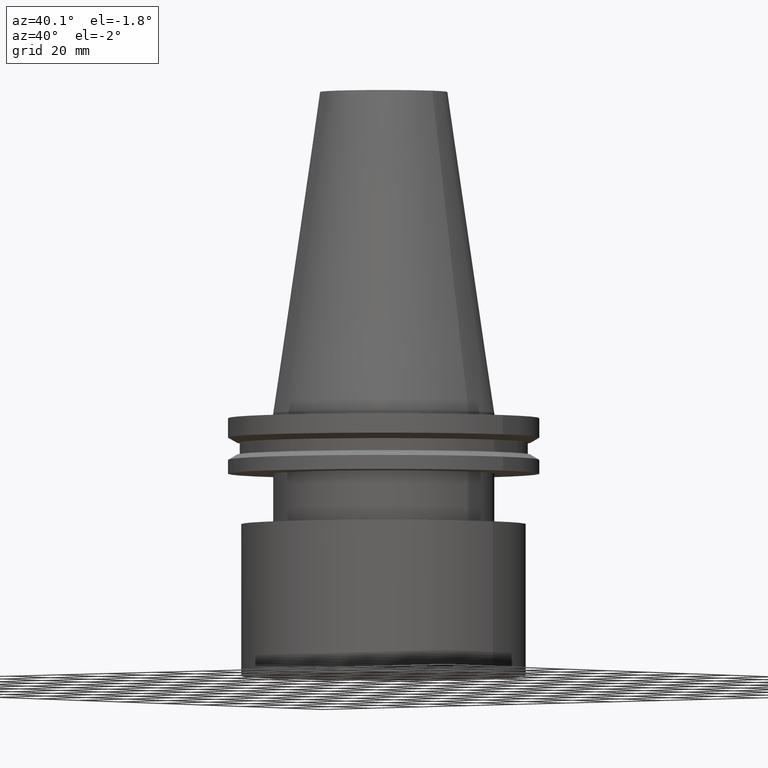
[diagram: clean part render]
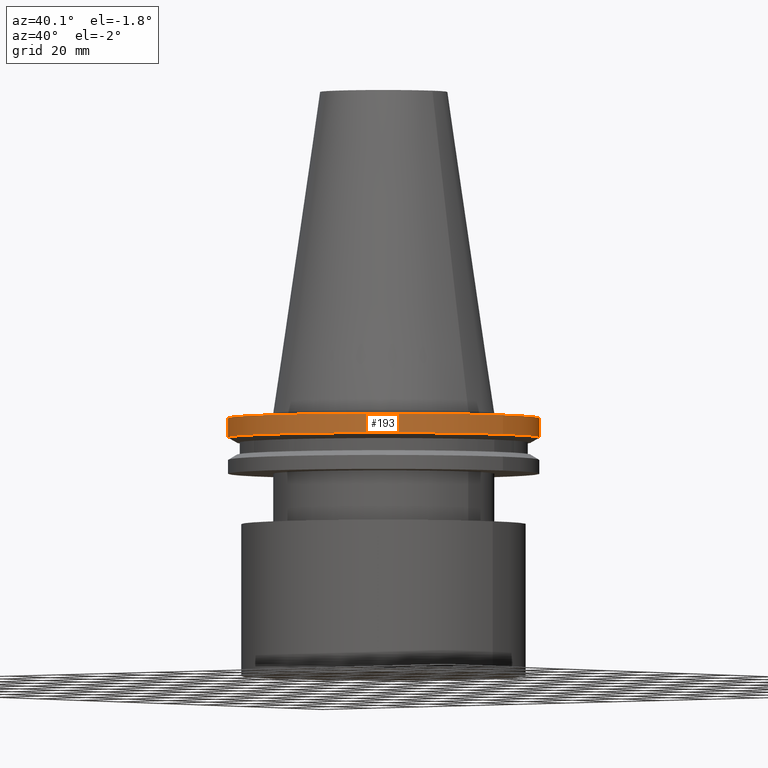
[diagram: same view with one face highlighted and labeled with its STEP entity id]
A machine part, auxiliary view. The second image highlights one B-rep face of the part: STEP entity #193.
In plain terms, the highlighted cylindrical surface (bore or boss wall) has radius 49.215 mm, axis along (-0, -0, 1).
Its self-contained STEP definition (entity closure, byte-faithful):
#34 = AXIS2_PLACEMENT_3D ( 'NONE', #300, #389, #119 ) ;
#35 = EDGE_CURVE ( 'NONE', #252, #252, #54, .T. ) ;
#41 = AXIS2_PLACEMENT_3D ( 'NONE', #144, #149, #50 ) ;
#50 = DIRECTION ( 'NONE',  ( 1.000000000000000000, 0.000000000000000000, 0.000000000000000000 ) ) ;
#51 = CYLINDRICAL_SURFACE ( 'NONE', #327, 49.21499999999999631 ) ;
#54 = CIRCLE ( 'NONE', #41, 49.21500000000000341 ) ;
#74 = EDGE_LOOP ( 'NONE', ( #165 ) ) ;
#114 = FACE_OUTER_BOUND ( 'NONE', #74, .T. ) ;
#119 = DIRECTION ( 'NONE',  ( 1.000000000000000000, 0.000000000000000000, 0.000000000000000000 ) ) ;
#133 = CARTESIAN_POINT ( 'NONE',  ( 49.21499999999999631, 0.000000000000000000, -1.499999999999987566 ) ) ;
#135 = EDGE_LOOP ( 'NONE', ( #172 ) ) ;
#137 = EDGE_CURVE ( 'NONE', #312, #312, #310, .T. ) ;
#144 = CARTESIAN_POINT ( 'NONE',  ( 0.000000000000000000, 0.000000000000000000, -7.602389855251287187 ) ) ;
#149 = DIRECTION ( 'NONE',  ( -0.000000000000000000, -0.000000000000000000, 1.000000000000000000 ) ) ;
#165 = ORIENTED_EDGE ( 'NONE', *, *, #137, .F. ) ;
#172 = ORIENTED_EDGE ( 'NONE', *, *, #35, .T. ) ;
#175 = DIRECTION ( 'NONE',  ( -0.000000000000000000, -0.000000000000000000, 1.000000000000000000 ) ) ;
#193 = ADVANCED_FACE ( 'NONE', ( #114, #323 ), #51, .T. ) ;
#252 = VERTEX_POINT ( 'NONE', #302 ) ;
#300 = CARTESIAN_POINT ( 'NONE',  ( 0.000000000000000000, 0.000000000000000000, -1.499999999999987566 ) ) ;
#302 = CARTESIAN_POINT ( 'NONE',  ( 49.21500000000000341, 0.000000000000000000, -7.602389855251287187 ) ) ;
#310 = CIRCLE ( 'NONE', #34, 49.21499999999999631 ) ;
#312 = VERTEX_POINT ( 'NONE', #133 ) ;
#323 = FACE_OUTER_BOUND ( 'NONE', #135, .T. ) ;
#327 = AXIS2_PLACEMENT_3D ( 'NONE', #355, #175, #329 ) ;
#329 = DIRECTION ( 'NONE',  ( 1.000000000000000000, 0.000000000000000000, 0.000000000000000000 ) ) ;
#355 = CARTESIAN_POINT ( 'NONE',  ( 0.000000000000000000, 0.000000000000000000, 101.5999999999999943 ) ) ;
#389 = DIRECTION ( 'NONE',  ( -0.000000000000000000, -0.000000000000000000, 1.000000000000000000 ) ) ;